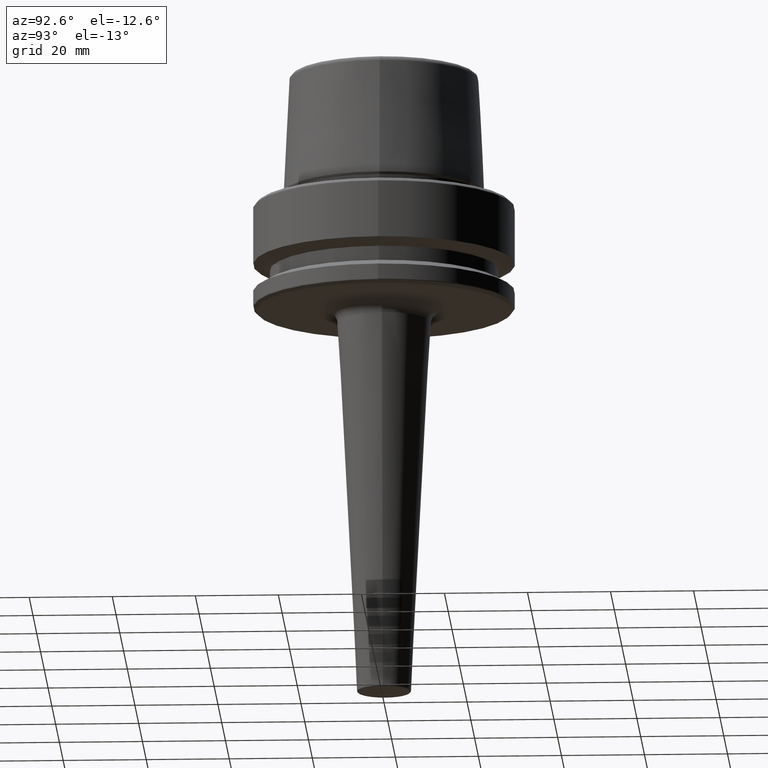
[diagram: clean part render]
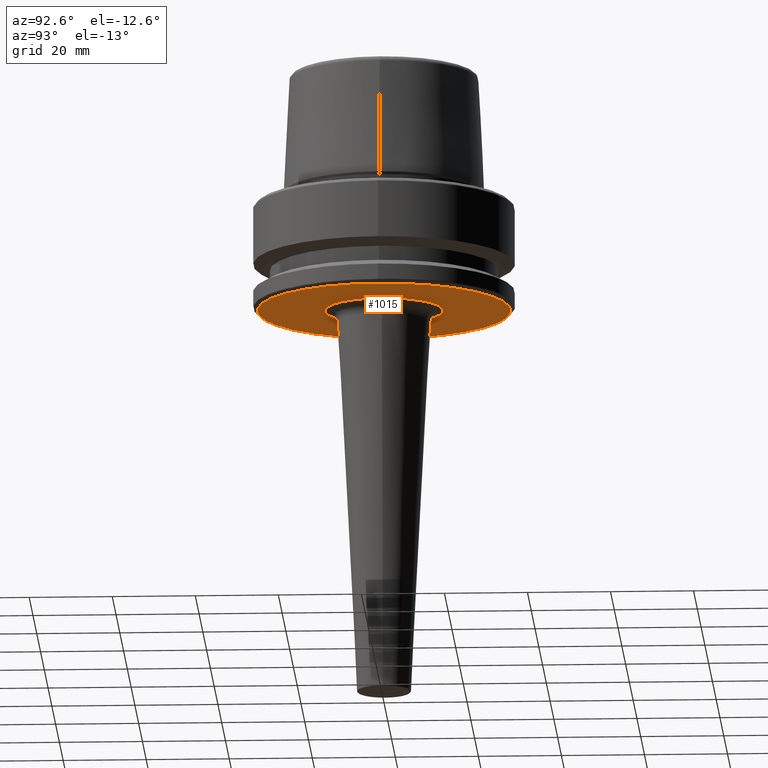
[diagram: same view with one face highlighted and labeled with its STEP entity id]
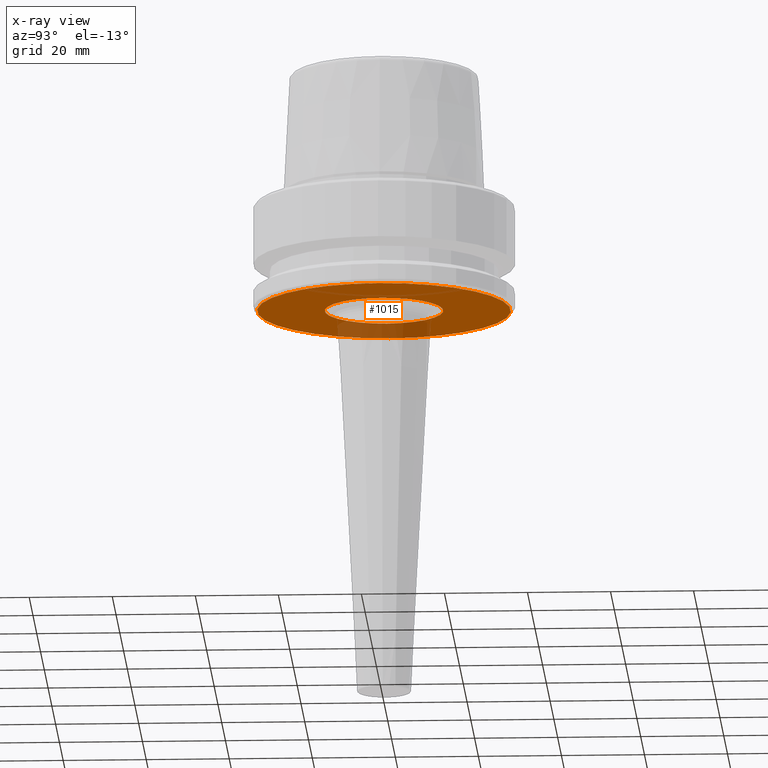
[diagram: x-ray of the same camera — body ghosted, the highlighted face saturated]
A machine part, auxiliary view. The second image highlights one B-rep face of the part: STEP entity #1015.
The next image is the same camera in x-ray: the body ghosted, the highlighted face saturated — about 16% of this face is hidden behind the body in this view.
In plain terms, the highlighted planar face has unit normal (0, -0, 1).
Its self-contained STEP definition (entity closure, byte-faithful):
#7 = DIRECTION ( 'NONE',  ( 0.0000000000000000000, -0.0000000000000000000, 1.000000000000000000 ) ) ;
#26 = ORIENTED_EDGE ( 'NONE', *, *, #263, .T. ) ;
#59 = DIRECTION ( 'NONE',  ( 1.000000000000000000, 0.0000000000000000000, 0.0000000000000000000 ) ) ;
#70 = DIRECTION ( 'NONE',  ( 1.000000000000000000, 0.0000000000000000000, 0.0000000000000000000 ) ) ;
#85 = CARTESIAN_POINT ( 'NONE',  ( 0.0000000000000000000, 0.0000000000000000000, -26.00000000000000700 ) ) ;
#142 = CARTESIAN_POINT ( 'NONE',  ( 30.53431457505076800, 0.0000000000000000000, -26.00000000000001100 ) ) ;
#204 = CIRCLE ( 'NONE', #376, 30.53431457505076800 ) ;
#263 = EDGE_CURVE ( 'NONE', #671, #368, #717, .T. ) ;
#358 = AXIS2_PLACEMENT_3D ( 'NONE', #840, #1030, #70 ) ;
#368 = VERTEX_POINT ( 'NONE', #834 ) ;
#376 = AXIS2_PLACEMENT_3D ( 'NONE', #987, #412, #1084 ) ;
#397 = AXIS2_PLACEMENT_3D ( 'NONE', #1082, #7, #603 ) ;
#412 = DIRECTION ( 'NONE',  ( -0.0000000000000000000, -0.0000000000000000000, 1.000000000000000000 ) ) ;
#438 = CARTESIAN_POINT ( 'NONE',  ( -30.53431457505076800, 3.756694181974139400E-015, -26.00000000000001100 ) ) ;
#455 = EDGE_LOOP ( 'NONE', ( #695, #1171 ) ) ;
#465 = CIRCLE ( 'NONE', #595, 30.53431457505076800 ) ;
#546 = CARTESIAN_POINT ( 'NONE',  ( 14.27322495275052100, 0.0000000000000000000, -26.00000000000000400 ) ) ;
#558 = EDGE_LOOP ( 'NONE', ( #26, #693 ) ) ;
#575 = EDGE_CURVE ( 'NONE', #633, #616, #465, .T. ) ;
#595 = AXIS2_PLACEMENT_3D ( 'NONE', #654, #1220, #59 ) ;
#603 = DIRECTION ( 'NONE',  ( 1.000000000000000000, 0.0000000000000000000, 0.0000000000000000000 ) ) ;
#616 = VERTEX_POINT ( 'NONE', #438 ) ;
#633 = VERTEX_POINT ( 'NONE', #142 ) ;
#638 = AXIS2_PLACEMENT_3D ( 'NONE', #85, #1043, #1234 ) ;
#654 = CARTESIAN_POINT ( 'NONE',  ( 0.0000000000000000000, 0.0000000000000000000, -26.00000000000001100 ) ) ;
#671 = VERTEX_POINT ( 'NONE', #546 ) ;
#693 = ORIENTED_EDGE ( 'NONE', *, *, #867, .T. ) ;
#695 = ORIENTED_EDGE ( 'NONE', *, *, #575, .F. ) ;
#717 = CIRCLE ( 'NONE', #358, 14.27322495275052100 ) ;
#794 = PLANE ( 'NONE',  #397 ) ;
#825 = FACE_BOUND ( 'NONE', #558, .T. ) ;
#834 = CARTESIAN_POINT ( 'NONE',  ( -14.27322495275052100, 1.747965925189605900E-015, -26.00000000000000400 ) ) ;
#840 = CARTESIAN_POINT ( 'NONE',  ( 0.0000000000000000000, 0.0000000000000000000, -26.00000000000000700 ) ) ;
#867 = EDGE_CURVE ( 'NONE', #368, #671, #875, .T. ) ;
#875 = CIRCLE ( 'NONE', #638, 14.27322495275052100 ) ;
#987 = CARTESIAN_POINT ( 'NONE',  ( 0.0000000000000000000, 0.0000000000000000000, -26.00000000000001100 ) ) ;
#1015 = ADVANCED_FACE ( 'NONE', ( #825, #1051 ), #794, .F. ) ;
#1030 = DIRECTION ( 'NONE',  ( -0.0000000000000000000, -0.0000000000000000000, 1.000000000000000000 ) ) ;
#1043 = DIRECTION ( 'NONE',  ( -0.0000000000000000000, -0.0000000000000000000, 1.000000000000000000 ) ) ;
#1051 = FACE_OUTER_BOUND ( 'NONE', #455, .T. ) ;
#1082 = CARTESIAN_POINT ( 'NONE',  ( 0.0000000000000000000, 30.53431457505076800, -26.00000000000000700 ) ) ;
#1084 = DIRECTION ( 'NONE',  ( 1.000000000000000000, 0.0000000000000000000, 0.0000000000000000000 ) ) ;
#1171 = ORIENTED_EDGE ( 'NONE', *, *, #1212, .F. ) ;
#1212 = EDGE_CURVE ( 'NONE', #616, #633, #204, .T. ) ;
#1220 = DIRECTION ( 'NONE',  ( -0.0000000000000000000, -0.0000000000000000000, 1.000000000000000000 ) ) ;
#1234 = DIRECTION ( 'NONE',  ( 1.000000000000000000, 0.0000000000000000000, 0.0000000000000000000 ) ) ;